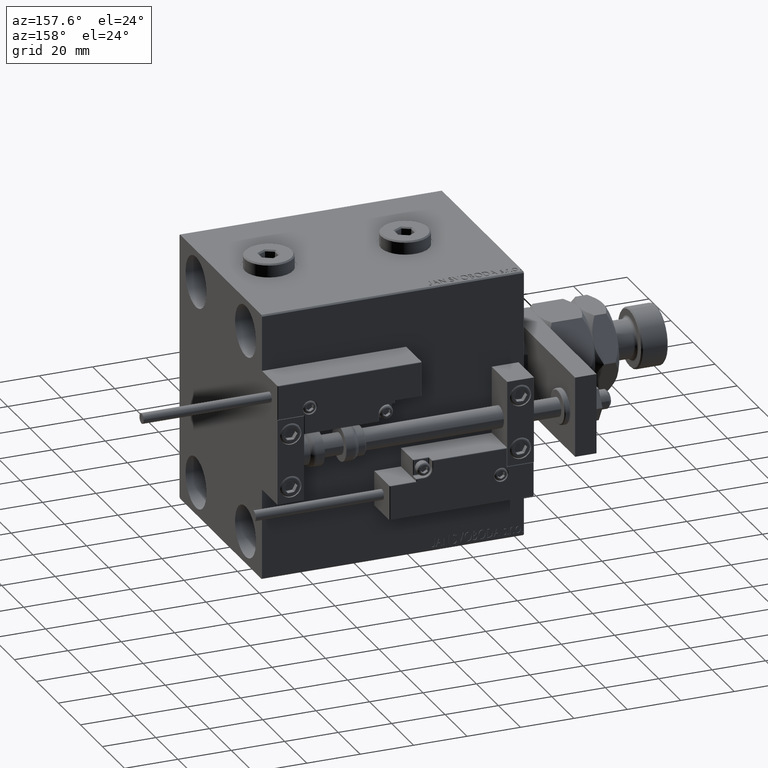
[diagram: clean part render]
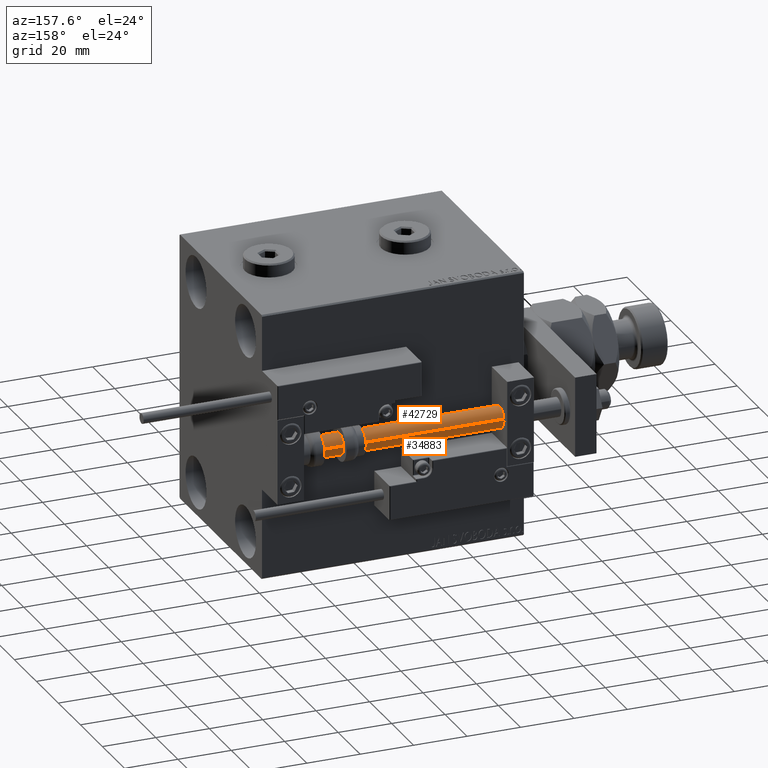
[diagram: same view with one multi-face feature highlighted, each face labeled with its STEP entity id]
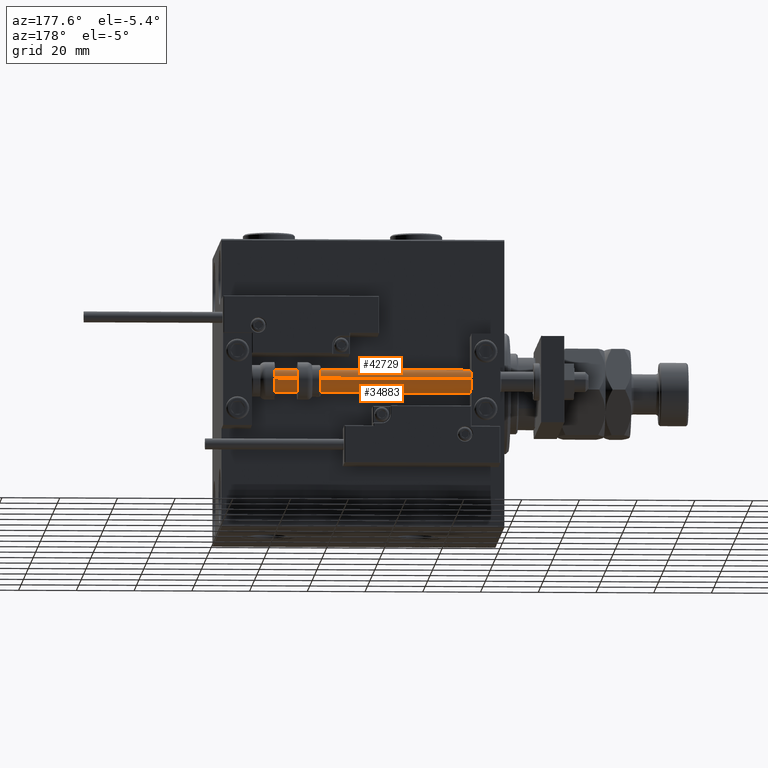
[diagram: same view with one multi-face feature highlighted, each face labeled with its STEP entity id]
A machine part, auxiliary view. The highlighted faces form ONE feature: a constant-radius fillet chain: 2 tangent blend faces with common blend radius 4 mm. The faces share edges in the B-rep.
A second angle (auxiliary view) of the same feature is appended — it is thin or edge-on in the first view.
Their STEP definitions:
[1] entity #42729 (Cylinder):
#668 = EDGE_CURVE ( 'NONE', #14032, #34175, #15692, .T. ) ;
#1248 = FACE_OUTER_BOUND ( 'NONE', #14411, .T. ) ;
#2303 = DIRECTION ( 'NONE',  ( -1.000000000000000000, 0.000000000000000000, 0.000000000000000000 ) ) ;
#2670 = DIRECTION ( 'NONE',  ( 0.000000000000000000, 0.000000000000000000, 1.000000000000000000 ) ) ;
#4600 = VECTOR ( 'NONE', #28163, 1000.000000000000000 ) ;
#6212 = AXIS2_PLACEMENT_3D ( 'NONE', #26041, #14654, #39218 ) ;
#6622 = ORIENTED_EDGE ( 'NONE', *, *, #28713, .F. ) ;
#8177 = CARTESIAN_POINT ( 'NONE',  ( 4.000000000000000000, 4.898587196589412829E-16, 98.00000000000000000 ) ) ;
#9348 = DIRECTION ( 'NONE',  ( -0.000000000000000000, -0.000000000000000000, -1.000000000000000000 ) ) ;
#14032 = VERTEX_POINT ( 'NONE', #49354 ) ;
#14411 = EDGE_LOOP ( 'NONE', ( #6622, #48268, #41381, #34732 ) ) ;
#14654 = DIRECTION ( 'NONE',  ( -0.000000000000000000, -0.000000000000000000, 1.000000000000000000 ) ) ;
#15161 = CARTESIAN_POINT ( 'NONE',  ( -4.000000000000000000, 0.000000000000000000, 98.00000000000000000 ) ) ;
#15622 = EDGE_CURVE ( 'NONE', #33043, #14032, #20333, .T. ) ;
#15692 = CIRCLE ( 'NONE', #6212, 4.000000000000000000 ) ;
#18528 = CARTESIAN_POINT ( 'NONE',  ( -4.000000000000000000, 0.000000000000000000, 2.000000000000029310 ) ) ;
#18924 = VERTEX_POINT ( 'NONE', #15161 ) ;
#19387 = DIRECTION ( 'NONE',  ( 1.000000000000000000, 0.000000000000000000, 0.000000000000000000 ) ) ;
#20333 = LINE ( 'NONE', #8177, #4600 ) ;
#22813 = CYLINDRICAL_SURFACE ( 'NONE', #53020, 4.000000000000000000 ) ;
#23178 = CARTESIAN_POINT ( 'NONE',  ( 0.000000000000000000, 0.000000000000000000, 98.00000000000000000 ) ) ;
#26041 = CARTESIAN_POINT ( 'NONE',  ( 0.000000000000000000, 0.000000000000000000, 2.000000000000029310 ) ) ;
#26355 = CARTESIAN_POINT ( 'NONE',  ( 0.000000000000000000, 0.000000000000000000, 98.00000000000000000 ) ) ;
#28163 = DIRECTION ( 'NONE',  ( -0.000000000000000000, -0.000000000000000000, -1.000000000000000000 ) ) ;
#28713 = EDGE_CURVE ( 'NONE', #33043, #18924, #35356, .T. ) ;
#33043 = VERTEX_POINT ( 'NONE', #51018 ) ;
#34175 = VERTEX_POINT ( 'NONE', #18528 ) ;
#34732 = ORIENTED_EDGE ( 'NONE', *, *, #35792, .F. ) ;
#35356 = CIRCLE ( 'NONE', #50033, 4.000000000000000000 ) ;
#35792 = EDGE_CURVE ( 'NONE', #18924, #34175, #36476, .T. ) ;
#36476 = LINE ( 'NONE', #50140, #50310 ) ;
#39218 = DIRECTION ( 'NONE',  ( 1.000000000000000000, 0.000000000000000000, 0.000000000000000000 ) ) ;
#41381 = ORIENTED_EDGE ( 'NONE', *, *, #668, .T. ) ;
#42729 = ADVANCED_FACE ( 'NONE', ( #1248 ), #22813, .T. ) ;
#48268 = ORIENTED_EDGE ( 'NONE', *, *, #15622, .T. ) ;
#49354 = CARTESIAN_POINT ( 'NONE',  ( 4.000000000000000000, 4.898587196589412829E-16, 2.000000000000029310 ) ) ;
#49874 = DIRECTION ( 'NONE',  ( -0.000000000000000000, -0.000000000000000000, -1.000000000000000000 ) ) ;
#50033 = AXIS2_PLACEMENT_3D ( 'NONE', #23178, #2670, #19387 ) ;
#50140 = CARTESIAN_POINT ( 'NONE',  ( -4.000000000000000000, 0.000000000000000000, 98.00000000000000000 ) ) ;
#50310 = VECTOR ( 'NONE', #49874, 1000.000000000000000 ) ;
#51018 = CARTESIAN_POINT ( 'NONE',  ( 4.000000000000000000, 4.898587196589412829E-16, 98.00000000000000000 ) ) ;
#53020 = AXIS2_PLACEMENT_3D ( 'NONE', #26355, #9348, #2303 ) ;
[2] entity #34883 (Cylinder):
#1035 = DIRECTION ( 'NONE',  ( -1.000000000000000000, 0.000000000000000000, 0.000000000000000000 ) ) ;
#4217 = ORIENTED_EDGE ( 'NONE', *, *, #15984, .F. ) ;
#4321 = DIRECTION ( 'NONE',  ( 1.000000000000000000, 0.000000000000000000, 0.000000000000000000 ) ) ;
#4600 = VECTOR ( 'NONE', #28163, 1000.000000000000000 ) ;
#5489 = AXIS2_PLACEMENT_3D ( 'NONE', #32141, #32673, #19723 ) ;
#5644 = EDGE_CURVE ( 'NONE', #34175, #14032, #40531, .T. ) ;
#8177 = CARTESIAN_POINT ( 'NONE',  ( 4.000000000000000000, 4.898587196589412829E-16, 98.00000000000000000 ) ) ;
#14032 = VERTEX_POINT ( 'NONE', #49354 ) ;
#15161 = CARTESIAN_POINT ( 'NONE',  ( -4.000000000000000000, 0.000000000000000000, 98.00000000000000000 ) ) ;
#15622 = EDGE_CURVE ( 'NONE', #33043, #14032, #20333, .T. ) ;
#15984 = EDGE_CURVE ( 'NONE', #18924, #33043, #18369, .T. ) ;
#18369 = CIRCLE ( 'NONE', #5489, 4.000000000000000000 ) ;
#18528 = CARTESIAN_POINT ( 'NONE',  ( -4.000000000000000000, 0.000000000000000000, 2.000000000000029310 ) ) ;
#18924 = VERTEX_POINT ( 'NONE', #15161 ) ;
#19240 = ORIENTED_EDGE ( 'NONE', *, *, #35792, .T. ) ;
#19723 = DIRECTION ( 'NONE',  ( 1.000000000000000000, 0.000000000000000000, 0.000000000000000000 ) ) ;
#20333 = LINE ( 'NONE', #8177, #4600 ) ;
#25351 = DIRECTION ( 'NONE',  ( -0.000000000000000000, -0.000000000000000000, -1.000000000000000000 ) ) ;
#25876 = CARTESIAN_POINT ( 'NONE',  ( 0.000000000000000000, 0.000000000000000000, 98.00000000000000000 ) ) ;
#28163 = DIRECTION ( 'NONE',  ( -0.000000000000000000, -0.000000000000000000, -1.000000000000000000 ) ) ;
#29650 = CYLINDRICAL_SURFACE ( 'NONE', #39064, 4.000000000000000000 ) ;
#30836 = ORIENTED_EDGE ( 'NONE', *, *, #15622, .F. ) ;
#32141 = CARTESIAN_POINT ( 'NONE',  ( 0.000000000000000000, 0.000000000000000000, 98.00000000000000000 ) ) ;
#32673 = DIRECTION ( 'NONE',  ( 0.000000000000000000, 0.000000000000000000, 1.000000000000000000 ) ) ;
#33043 = VERTEX_POINT ( 'NONE', #51018 ) ;
#33634 = ORIENTED_EDGE ( 'NONE', *, *, #5644, .T. ) ;
#34175 = VERTEX_POINT ( 'NONE', #18528 ) ;
#34757 = EDGE_LOOP ( 'NONE', ( #30836, #4217, #19240, #33634 ) ) ;
#34883 = ADVANCED_FACE ( 'NONE', ( #37189 ), #29650, .T. ) ;
#35792 = EDGE_CURVE ( 'NONE', #18924, #34175, #36476, .T. ) ;
#36209 = AXIS2_PLACEMENT_3D ( 'NONE', #37507, #49638, #4321 ) ;
#36476 = LINE ( 'NONE', #50140, #50310 ) ;
#37189 = FACE_OUTER_BOUND ( 'NONE', #34757, .T. ) ;
#37507 = CARTESIAN_POINT ( 'NONE',  ( 0.000000000000000000, 0.000000000000000000, 2.000000000000029310 ) ) ;
#39064 = AXIS2_PLACEMENT_3D ( 'NONE', #25876, #25351, #1035 ) ;
#40531 = CIRCLE ( 'NONE', #36209, 4.000000000000000000 ) ;
#49354 = CARTESIAN_POINT ( 'NONE',  ( 4.000000000000000000, 4.898587196589412829E-16, 2.000000000000029310 ) ) ;
#49638 = DIRECTION ( 'NONE',  ( -0.000000000000000000, -0.000000000000000000, 1.000000000000000000 ) ) ;
#49874 = DIRECTION ( 'NONE',  ( -0.000000000000000000, -0.000000000000000000, -1.000000000000000000 ) ) ;
#50140 = CARTESIAN_POINT ( 'NONE',  ( -4.000000000000000000, 0.000000000000000000, 98.00000000000000000 ) ) ;
#50310 = VECTOR ( 'NONE', #49874, 1000.000000000000000 ) ;
#51018 = CARTESIAN_POINT ( 'NONE',  ( 4.000000000000000000, 4.898587196589412829E-16, 98.00000000000000000 ) ) ;